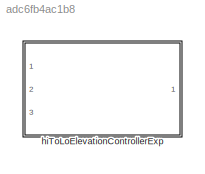
MODEL slx_adc6fb4ac1b8
KIND library
CONFIG AbsTol = auto
CONFIG EnableMultiTasking = off
CONFIG FixedStep = auto
CONFIG MaxStep = auto
CONFIG MinStep = auto
CONFIG RelTol = 1e-3
CONFIG SampleTimeConstraint = Unconstrained
CONFIG SolverName = VariableStepAuto
CONFIG StartTime = 0.0
CONFIG StopTime = 10.0
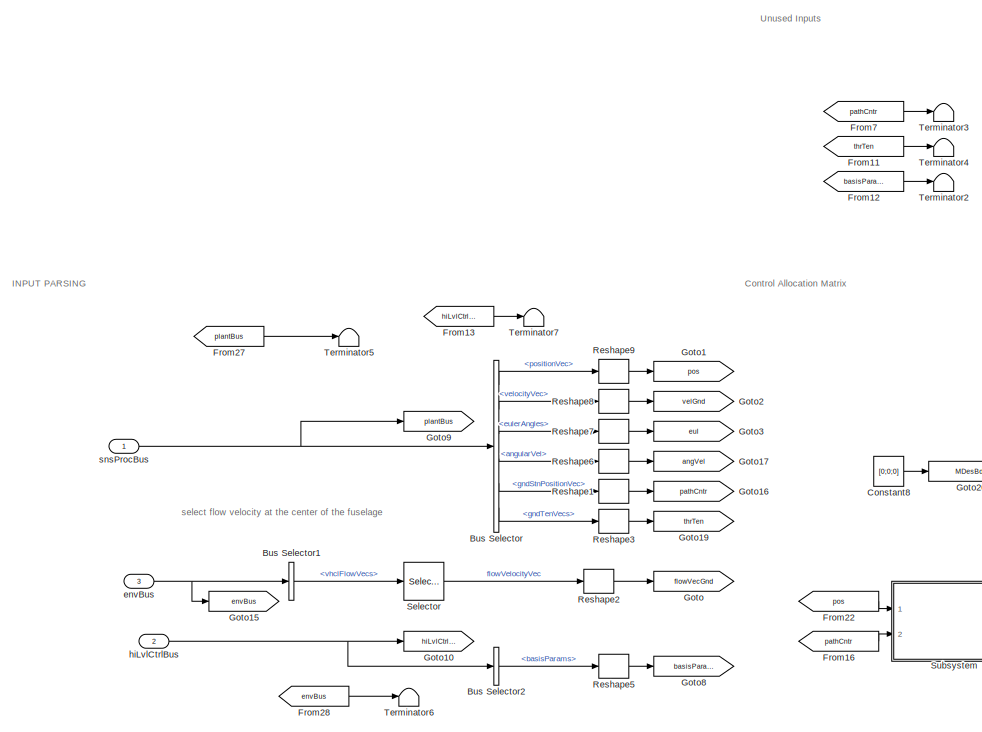
[diagram: hiToLoElevationControllerExp - part 1/3, left side, full height]
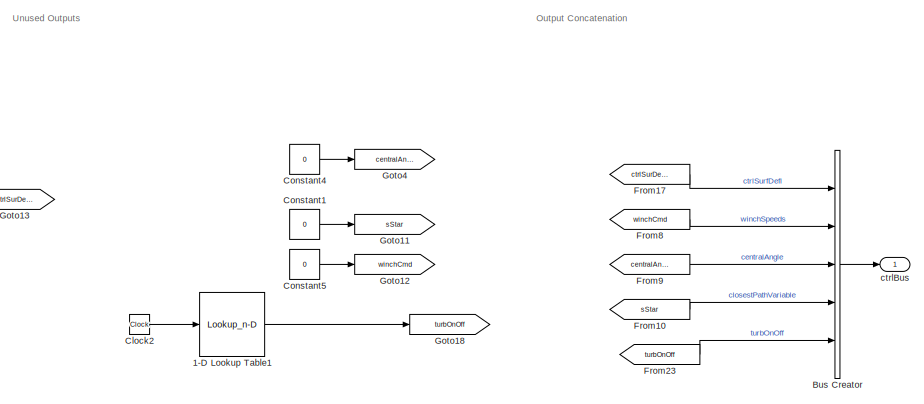
[diagram: hiToLoElevationControllerExp - part 2/3, middle right region]
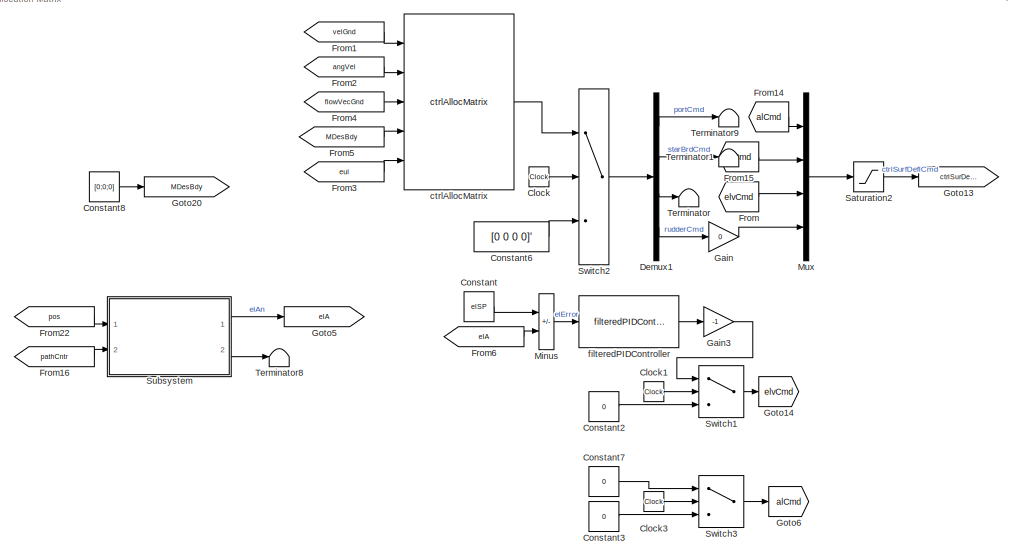
[diagram: hiToLoElevationControllerExp - part 3/3, bottom center region]
BLOCK [SubSystem] hiToLoElevationControllerExp
  InitFcn = initializeBussesFromBlock(gcb)
  LoadFcn = initializeBussesFromBlock(gcb)
  Ports = [3, 1]
  RequestExecContextInheritance = off
  StartFcn = initializeBussesFromBlock(gcb)
BLOCK [Lookup_n-D] hiToLoElevationControllerExp/1-D Lookup Table1
  BreakpointsForDimension1 = [0 1000 2000]
  InputPortMap = u0
  InternalRulePriority = Speed
  InterpMethod = Flat
  NumberOfTableDimensions = 1
  Ports = [1, 1]
  RndMeth = Simplest
  Table = [0 0 0]
BLOCK [BusCreator] hiToLoElevationControllerExp/Bus Creator
  DisplayOption = bar
  InheritFromInputs = off
  Inputs = 5
  OutDataTypeStr = Bus: fltCtrlBus
  Ports = [5, 1]
BLOCK [BusSelector] hiToLoElevationControllerExp/Bus Selector
  OutputSignals = positionVec,velocityVec,eulerAngles,angularVel,gndStnPositionVec,gndTenVecs
  Ports = [1, 6]
BLOCK [BusSelector] hiToLoElevationControllerExp/Bus Selector1
  OutputSignals = vhclFlowVecs
  Ports = [1, 1]
BLOCK [BusSelector] hiToLoElevationControllerExp/Bus Selector2
  OutputSignals = basisParams
  Ports = [1, 1]
BLOCK [Clock] hiToLoElevationControllerExp/Clock
BLOCK [Clock] hiToLoElevationControllerExp/Clock1
BLOCK [Clock] hiToLoElevationControllerExp/Clock2
BLOCK [Clock] hiToLoElevationControllerExp/Clock3
BLOCK [Constant] hiToLoElevationControllerExp/Constant
  Value = elSP
BLOCK [Constant] hiToLoElevationControllerExp/Constant1
  Value = 0
BLOCK [Constant] hiToLoElevationControllerExp/Constant2
  Value = 0
BLOCK [Constant] hiToLoElevationControllerExp/Constant3
  Value = 0
BLOCK [Constant] hiToLoElevationControllerExp/Constant4
  Value = 0
BLOCK [Constant] hiToLoElevationControllerExp/Constant5
  Value = 0
BLOCK [Constant] hiToLoElevationControllerExp/Constant6
  Value = [0 0 0 0]'
BLOCK [Constant] hiToLoElevationControllerExp/Constant7
  Value = 0
BLOCK [Constant] hiToLoElevationControllerExp/Constant8
  Value = [0;0;0]
BLOCK [Demux] hiToLoElevationControllerExp/Demux1
  Ports = [1, 4]
BLOCK [From] hiToLoElevationControllerExp/From
  GotoTag = elvCmd
BLOCK [From] hiToLoElevationControllerExp/From1
  GotoTag = velGnd
BLOCK [From] hiToLoElevationControllerExp/From10
  GotoTag = sStar
BLOCK [From] hiToLoElevationControllerExp/From11
  GotoTag = thrTen
BLOCK [From] hiToLoElevationControllerExp/From12
  GotoTag = basisParams
BLOCK [From] hiToLoElevationControllerExp/From13
  GotoTag = hiLvlCtrlBus
BLOCK [From] hiToLoElevationControllerExp/From14
  GotoTag = alCmd
BLOCK [From] hiToLoElevationControllerExp/From15
  GotoTag = alCmd
BLOCK [From] hiToLoElevationControllerExp/From16
  GotoTag = pathCntr
BLOCK [From] hiToLoElevationControllerExp/From17
  GotoTag = ctrlSurDefl
BLOCK [From] hiToLoElevationControllerExp/From2
  GotoTag = angVel
BLOCK [From] hiToLoElevationControllerExp/From22
  GotoTag = pos
BLOCK [From] hiToLoElevationControllerExp/From23
  GotoTag = turbOnOff
BLOCK [From] hiToLoElevationControllerExp/From27
  GotoTag = plantBus
BLOCK [From] hiToLoElevationControllerExp/From28
  GotoTag = envBus
BLOCK [From] hiToLoElevationControllerExp/From3
  GotoTag = eul
BLOCK [From] hiToLoElevationControllerExp/From4
  GotoTag = flowVecGnd
BLOCK [From] hiToLoElevationControllerExp/From5
  GotoTag = MDesBdy
BLOCK [From] hiToLoElevationControllerExp/From6
  GotoTag = elA
BLOCK [From] hiToLoElevationControllerExp/From7
  GotoTag = pathCntr
BLOCK [From] hiToLoElevationControllerExp/From8
  GotoTag = winchCmd
BLOCK [From] hiToLoElevationControllerExp/From9
  GotoTag = centralAngle
BLOCK [Gain] hiToLoElevationControllerExp/Gain
  Gain = 0
BLOCK [Gain] hiToLoElevationControllerExp/Gain3
  Gain = -1
BLOCK [Goto] hiToLoElevationControllerExp/Goto
  GotoTag = flowVecGnd
BLOCK [Goto] hiToLoElevationControllerExp/Goto1
  GotoTag = pos
BLOCK [Goto] hiToLoElevationControllerExp/Goto10
  GotoTag = hiLvlCtrlBus
BLOCK [Goto] hiToLoElevationControllerExp/Goto11
  GotoTag = sStar
BLOCK [Goto] hiToLoElevationControllerExp/Goto12
  GotoTag = winchCmd
BLOCK [Goto] hiToLoElevationControllerExp/Goto13
  GotoTag = ctrlSurDefl
BLOCK [Goto] hiToLoElevationControllerExp/Goto14
  GotoTag = elvCmd
BLOCK [Goto] hiToLoElevationControllerExp/Goto15
  GotoTag = envBus
BLOCK [Goto] hiToLoElevationControllerExp/Goto16
  GotoTag = pathCntr
BLOCK [Goto] hiToLoElevationControllerExp/Goto17
  GotoTag = angVel
BLOCK [Goto] hiToLoElevationControllerExp/Goto18
  GotoTag = turbOnOff
BLOCK [Goto] hiToLoElevationControllerExp/Goto19
  GotoTag = thrTen
BLOCK [Goto] hiToLoElevationControllerExp/Goto2
  GotoTag = velGnd
BLOCK [Goto] hiToLoElevationControllerExp/Goto20
  GotoTag = MDesBdy
BLOCK [Goto] hiToLoElevationControllerExp/Goto3
  GotoTag = eul
BLOCK [Goto] hiToLoElevationControllerExp/Goto4
  GotoTag = centralAngle
BLOCK [Goto] hiToLoElevationControllerExp/Goto5
  GotoTag = elA
BLOCK [Goto] hiToLoElevationControllerExp/Goto6
  GotoTag = alCmd
BLOCK [Goto] hiToLoElevationControllerExp/Goto8
  GotoTag = basisParams
BLOCK [Goto] hiToLoElevationControllerExp/Goto9
  GotoTag = plantBus
BLOCK [Sum] hiToLoElevationControllerExp/Minus
  IconShape = rectangular
  Inputs = +-
  Ports = [2, 1]
BLOCK [Mux] hiToLoElevationControllerExp/Mux
  DisplayOption = bar
  Ports = [4, 1]
BLOCK [Reshape] hiToLoElevationControllerExp/Reshape1
  OutputDimensionality = Column vector (2-D)
  Ports = [1, 1]
BLOCK [Reshape] hiToLoElevationControllerExp/Reshape2
  OutputDimensionality = Column vector (2-D)
  Ports = [1, 1]
BLOCK [Reshape] hiToLoElevationControllerExp/Reshape3
  OutputDimensionality = Column vector (2-D)
  Ports = [1, 1]
BLOCK [Reshape] hiToLoElevationControllerExp/Reshape5
  OutputDimensionality = Column vector (2-D)
  Ports = [1, 1]
BLOCK [Reshape] hiToLoElevationControllerExp/Reshape6
  OutputDimensionality = Column vector (2-D)
  Ports = [1, 1]
BLOCK [Reshape] hiToLoElevationControllerExp/Reshape7
  OutputDimensionality = Column vector (2-D)
  Ports = [1, 1]
BLOCK [Reshape] hiToLoElevationControllerExp/Reshape8
  OutputDimensionality = Column vector (2-D)
  Ports = [1, 1]
BLOCK [Reshape] hiToLoElevationControllerExp/Reshape9
  OutputDimensionality = Column vector (2-D)
  Ports = [1, 1]
BLOCK [Saturate] hiToLoElevationControllerExp/Saturation2
  LowerLimit = pathCtrl.controlSigMax.lowerLimit.Value
  UpperLimit = pathCtrl.controlSigMax.upperLimit.Value
BLOCK [Selector] hiToLoElevationControllerExp/Selector
  IndexOptions = Select all,Index vector (dialog)
  Indices = [1 3],5
  InputPortWidth = 3
  NumberOfDimensions = 2
  OutputSizes = 1,1
  Ports = [1, 1]
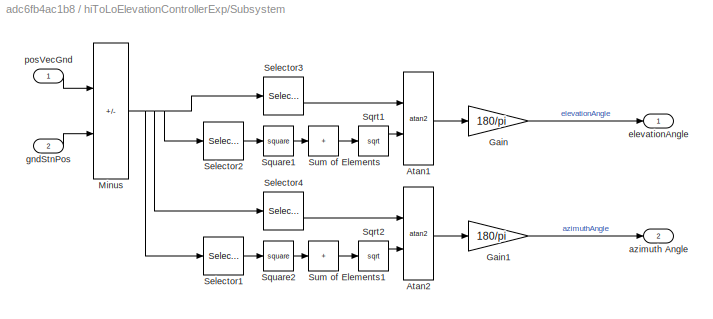
BLOCK [SubSystem] hiToLoElevationControllerExp/Subsystem
  AncestorBlock = pathFollowingController_cl/pathFollowingController/Subsystem
  Ports = [2, 2]
  RequestExecContextInheritance = off
BLOCK [Trigonometry] hiToLoElevationControllerExp/Subsystem/Atan1
  Operator = atan2
  Ports = [2, 1]
BLOCK [Trigonometry] hiToLoElevationControllerExp/Subsystem/Atan2
  Operator = atan2
  Ports = [2, 1]
BLOCK [Gain] hiToLoElevationControllerExp/Subsystem/Gain
  Gain = 180/pi
BLOCK [Gain] hiToLoElevationControllerExp/Subsystem/Gain1
  Gain = 180/pi
BLOCK [Sum] hiToLoElevationControllerExp/Subsystem/Minus
  IconShape = rectangular
  Inputs = +-
  Ports = [2, 1]
BLOCK [Selector] hiToLoElevationControllerExp/Subsystem/Selector1
  IndexOptions = Index vector (dialog)
  Indices = 1
  InputPortWidth = 3
  OutputSizes = 1
  Ports = [1, 1]
BLOCK [Selector] hiToLoElevationControllerExp/Subsystem/Selector2
  IndexOptions = Index vector (dialog)
  Indices = [1 2]
  InputPortWidth = 3
  OutputSizes = 1
  Ports = [1, 1]
BLOCK [Selector] hiToLoElevationControllerExp/Subsystem/Selector3
  IndexOptions = Index vector (dialog)
  Indices = 3
  InputPortWidth = 3
  OutputSizes = 1
  Ports = [1, 1]
BLOCK [Selector] hiToLoElevationControllerExp/Subsystem/Selector4
  IndexOptions = Index vector (dialog)
  Indices = 2
  InputPortWidth = 3
  OutputSizes = 1
  Ports = [1, 1]
BLOCK [Sqrt] hiToLoElevationControllerExp/Subsystem/Sqrt1
BLOCK [Sqrt] hiToLoElevationControllerExp/Subsystem/Sqrt2
BLOCK [Math] hiToLoElevationControllerExp/Subsystem/Square1
  Operator = square
  Ports = [1, 1]
  SignedPower = on
BLOCK [Math] hiToLoElevationControllerExp/Subsystem/Square2
  Operator = square
  Ports = [1, 1]
  SignedPower = on
BLOCK [Sum] hiToLoElevationControllerExp/Subsystem/Sum of Elements
  IconShape = rectangular
  Inputs = +
  Ports = [1, 1]
BLOCK [Sum] hiToLoElevationControllerExp/Subsystem/Sum of Elements1
  IconShape = rectangular
  Inputs = +
  Ports = [1, 1]
BLOCK [Outport] hiToLoElevationControllerExp/Subsystem/azimuth Angle
  Port = 2
BLOCK [Outport] hiToLoElevationControllerExp/Subsystem/elevationAngle
BLOCK [Inport] hiToLoElevationControllerExp/Subsystem/gndStnPos
  Port = 2
BLOCK [Inport] hiToLoElevationControllerExp/Subsystem/posVecGnd
BLOCK [Switch] hiToLoElevationControllerExp/Switch1
  Criteria = u2 > Threshold
  InputSameDT = off
  SaturateOnIntegerOverflow = off
  Threshold = pathCtrl.startControl.Value
BLOCK [Switch] hiToLoElevationControllerExp/Switch2
  Criteria = u2 > Threshold
  InputSameDT = off
  SaturateOnIntegerOverflow = off
  Threshold = pathCtrl.startControl.Value
BLOCK [Switch] hiToLoElevationControllerExp/Switch3
  Criteria = u2 > Threshold
  InputSameDT = off
  SaturateOnIntegerOverflow = off
  Threshold = pathCtrl.startControl.Value
BLOCK [Terminator] hiToLoElevationControllerExp/Terminator
BLOCK [Terminator] hiToLoElevationControllerExp/Terminator1
BLOCK [Terminator] hiToLoElevationControllerExp/Terminator2
BLOCK [Terminator] hiToLoElevationControllerExp/Terminator3
BLOCK [Terminator] hiToLoElevationControllerExp/Terminator4
BLOCK [Terminator] hiToLoElevationControllerExp/Terminator5
BLOCK [Terminator] hiToLoElevationControllerExp/Terminator6
BLOCK [Terminator] hiToLoElevationControllerExp/Terminator7
BLOCK [Terminator] hiToLoElevationControllerExp/Terminator8
BLOCK [Terminator] hiToLoElevationControllerExp/Terminator9
BLOCK [Reference] hiToLoElevationControllerExp/ctrlAllocMatrix  REF=ctrlAllocMatrix_cl/ctrlAllocMatrix
  Commented = on
  Ports = [5, 1]
  SourceBlock = ctrlAllocMatrix_cl/ctrlAllocMatrix
BLOCK [Outport] hiToLoElevationControllerExp/ctrlBus
  OutDataTypeStr = Bus: fltCtrlBus
BLOCK [Inport] hiToLoElevationControllerExp/envBus
  OutDataTypeStr = Bus: envBus
  Port = 3
BLOCK [Reference] hiToLoElevationControllerExp/filteredPIDController  REF=filteredPIDController_ul/filteredPIDController
  Ports = [1, 1]
  SourceBlock = filteredPIDController_ul/filteredPIDController
BLOCK [Inport] hiToLoElevationControllerExp/hiLvlCtrlBus
  OutDataTypeStr = Bus: hiLvlCtrlBus
  Port = 2
BLOCK [Inport] hiToLoElevationControllerExp/snsProcBus
  OutDataTypeStr = Bus: sensorsProcessingBus
ANNOTATION hiToLoElevationControllerExp: Control Allocation Matrix
ANNOTATION hiToLoElevationControllerExp: INPUT PARSING
ANNOTATION hiToLoElevationControllerExp: Output Concatenation
ANNOTATION hiToLoElevationControllerExp: Unused Inputs
ANNOTATION hiToLoElevationControllerExp: Unused Outputs
ANNOTATION hiToLoElevationControllerExp: select flow velocity at the center of the fuselage
LINE hiToLoElevationControllerExp/1-D Lookup Table1:1 -> hiToLoElevationControllerExp/Goto18:1
LINE hiToLoElevationControllerExp/Bus Creator:1 -> hiToLoElevationControllerExp/ctrlBus:1
LINE hiToLoElevationControllerExp/Bus Selector1:1 -> hiToLoElevationControllerExp/Selector:1
LINE hiToLoElevationControllerExp/Bus Selector2:1 -> hiToLoElevationControllerExp/Reshape5:1
LINE hiToLoElevationControllerExp/Bus Selector:1 -> hiToLoElevationControllerExp/Reshape9:1
LINE hiToLoElevationControllerExp/Bus Selector:2 -> hiToLoElevationControllerExp/Reshape8:1
LINE hiToLoElevationControllerExp/Bus Selector:3 -> hiToLoElevationControllerExp/Reshape7:1
LINE hiToLoElevationControllerExp/Bus Selector:4 -> hiToLoElevationControllerExp/Reshape6:1
LINE hiToLoElevationControllerExp/Bus Selector:5 -> hiToLoElevationControllerExp/Reshape1:1
LINE hiToLoElevationControllerExp/Bus Selector:6 -> hiToLoElevationControllerExp/Reshape3:1
LINE hiToLoElevationControllerExp/Clock1:1 -> hiToLoElevationControllerExp/Switch1:2
LINE hiToLoElevationControllerExp/Clock2:1 -> hiToLoElevationControllerExp/1-D Lookup Table1:1
LINE hiToLoElevationControllerExp/Clock3:1 -> hiToLoElevationControllerExp/Switch3:2
LINE hiToLoElevationControllerExp/Clock:1 -> hiToLoElevationControllerExp/Switch2:2
LINE hiToLoElevationControllerExp/Constant1:1 -> hiToLoElevationControllerExp/Goto11:1
LINE hiToLoElevationControllerExp/Constant2:1 -> hiToLoElevationControllerExp/Switch1:3
LINE hiToLoElevationControllerExp/Constant3:1 -> hiToLoElevationControllerExp/Switch3:3
LINE hiToLoElevationControllerExp/Constant4:1 -> hiToLoElevationControllerExp/Goto4:1
LINE hiToLoElevationControllerExp/Constant5:1 -> hiToLoElevationControllerExp/Goto12:1
LINE hiToLoElevationControllerExp/Constant6:1 -> hiToLoElevationControllerExp/Switch2:3
LINE hiToLoElevationControllerExp/Constant7:1 -> hiToLoElevationControllerExp/Switch3:1
LINE hiToLoElevationControllerExp/Constant8:1 -> hiToLoElevationControllerExp/Goto20:1
LINE hiToLoElevationControllerExp/Constant:1 -> hiToLoElevationControllerExp/Minus:1
LINE hiToLoElevationControllerExp/Demux1:1 -> hiToLoElevationControllerExp/Terminator9:1
LINE hiToLoElevationControllerExp/Demux1:2 -> hiToLoElevationControllerExp/Terminator1:1
LINE hiToLoElevationControllerExp/Demux1:3 -> hiToLoElevationControllerExp/Terminator:1
LINE hiToLoElevationControllerExp/Demux1:4 -> hiToLoElevationControllerExp/Gain:1
LINE hiToLoElevationControllerExp/From10:1 -> hiToLoElevationControllerExp/Bus Creator:4
LINE hiToLoElevationControllerExp/From11:1 -> hiToLoElevationControllerExp/Terminator4:1
LINE hiToLoElevationControllerExp/From12:1 -> hiToLoElevationControllerExp/Terminator2:1
LINE hiToLoElevationControllerExp/From13:1 -> hiToLoElevationControllerExp/Terminator7:1
LINE hiToLoElevationControllerExp/From14:1 -> hiToLoElevationControllerExp/Mux:1
LINE hiToLoElevationControllerExp/From15:1 -> hiToLoElevationControllerExp/Mux:2
LINE hiToLoElevationControllerExp/From16:1 -> hiToLoElevationControllerExp/Subsystem:2
LINE hiToLoElevationControllerExp/From17:1 -> hiToLoElevationControllerExp/Bus Creator:1
LINE hiToLoElevationControllerExp/From1:1 -> hiToLoElevationControllerExp/ctrlAllocMatrix:1
LINE hiToLoElevationControllerExp/From22:1 -> hiToLoElevationControllerExp/Subsystem:1
LINE hiToLoElevationControllerExp/From23:1 -> hiToLoElevationControllerExp/Bus Creator:5
LINE hiToLoElevationControllerExp/From27:1 -> hiToLoElevationControllerExp/Terminator5:1
LINE hiToLoElevationControllerExp/From28:1 -> hiToLoElevationControllerExp/Terminator6:1
LINE hiToLoElevationControllerExp/From2:1 -> hiToLoElevationControllerExp/ctrlAllocMatrix:2
LINE hiToLoElevationControllerExp/From3:1 -> hiToLoElevationControllerExp/ctrlAllocMatrix:5
LINE hiToLoElevationControllerExp/From4:1 -> hiToLoElevationControllerExp/ctrlAllocMatrix:3
LINE hiToLoElevationControllerExp/From5:1 -> hiToLoElevationControllerExp/ctrlAllocMatrix:4
LINE hiToLoElevationControllerExp/From6:1 -> hiToLoElevationControllerExp/Minus:2
LINE hiToLoElevationControllerExp/From7:1 -> hiToLoElevationControllerExp/Terminator3:1
LINE hiToLoElevationControllerExp/From8:1 -> hiToLoElevationControllerExp/Bus Creator:2
LINE hiToLoElevationControllerExp/From9:1 -> hiToLoElevationControllerExp/Bus Creator:3
LINE hiToLoElevationControllerExp/From:1 -> hiToLoElevationControllerExp/Mux:3
LINE hiToLoElevationControllerExp/Gain3:1 -> hiToLoElevationControllerExp/Switch1:1
LINE hiToLoElevationControllerExp/Gain:1 -> hiToLoElevationControllerExp/Mux:4
LINE hiToLoElevationControllerExp/Minus:1 -> hiToLoElevationControllerExp/filteredPIDController:1
LINE hiToLoElevationControllerExp/Mux:1 -> hiToLoElevationControllerExp/Saturation2:1
LINE hiToLoElevationControllerExp/Reshape1:1 -> hiToLoElevationControllerExp/Goto16:1
LINE hiToLoElevationControllerExp/Reshape2:1 -> hiToLoElevationControllerExp/Goto:1
LINE hiToLoElevationControllerExp/Reshape3:1 -> hiToLoElevationControllerExp/Goto19:1
LINE hiToLoElevationControllerExp/Reshape5:1 -> hiToLoElevationControllerExp/Goto8:1
LINE hiToLoElevationControllerExp/Reshape6:1 -> hiToLoElevationControllerExp/Goto17:1
LINE hiToLoElevationControllerExp/Reshape7:1 -> hiToLoElevationControllerExp/Goto3:1
LINE hiToLoElevationControllerExp/Reshape8:1 -> hiToLoElevationControllerExp/Goto2:1
LINE hiToLoElevationControllerExp/Reshape9:1 -> hiToLoElevationControllerExp/Goto1:1
LINE hiToLoElevationControllerExp/Saturation2:1 -> hiToLoElevationControllerExp/Goto13:1
LINE hiToLoElevationControllerExp/Selector:1 -> hiToLoElevationControllerExp/Reshape2:1
LINE hiToLoElevationControllerExp/Subsystem:1 -> hiToLoElevationControllerExp/Goto5:1
LINE hiToLoElevationControllerExp/Subsystem:2 -> hiToLoElevationControllerExp/Terminator8:1
LINE hiToLoElevationControllerExp/Switch1:1 -> hiToLoElevationControllerExp/Goto14:1
LINE hiToLoElevationControllerExp/Switch2:1 -> hiToLoElevationControllerExp/Demux1:1
LINE hiToLoElevationControllerExp/Switch3:1 -> hiToLoElevationControllerExp/Goto6:1
LINE hiToLoElevationControllerExp/ctrlAllocMatrix:1 -> hiToLoElevationControllerExp/Switch2:1
NET hiToLoElevationControllerExp/envBus:1 -> hiToLoElevationControllerExp/Bus Selector1:1, hiToLoElevationControllerExp/Goto15:1
LINE hiToLoElevationControllerExp/filteredPIDController:1 -> hiToLoElevationControllerExp/Gain3:1
NET hiToLoElevationControllerExp/hiLvlCtrlBus:1 -> hiToLoElevationControllerExp/Bus Selector2:1, hiToLoElevationControllerExp/Goto10:1
NET hiToLoElevationControllerExp/snsProcBus:1 -> hiToLoElevationControllerExp/Bus Selector:1, hiToLoElevationControllerExp/Goto9:1
note: NET lines group one-source signal fan-out (src -> all destinations, sorted); 1:1 wires keep LINE
